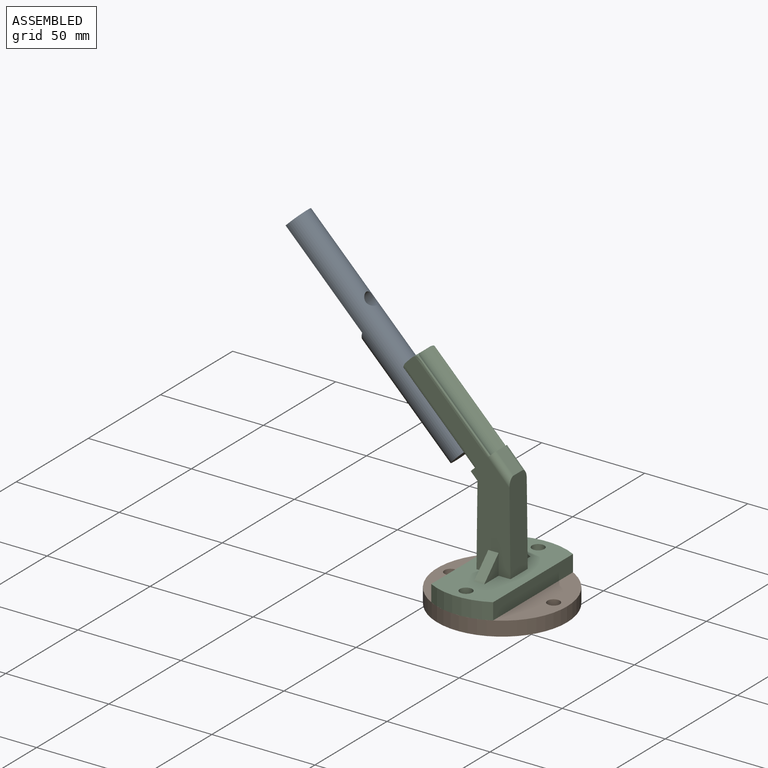
[diagram: assembled view]
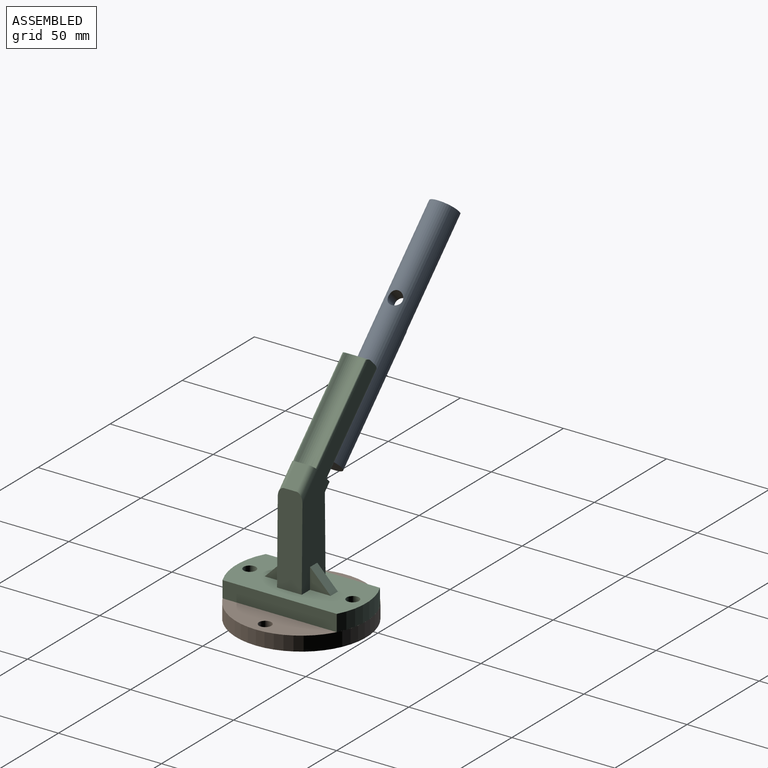
[diagram: assembled view, second angle]
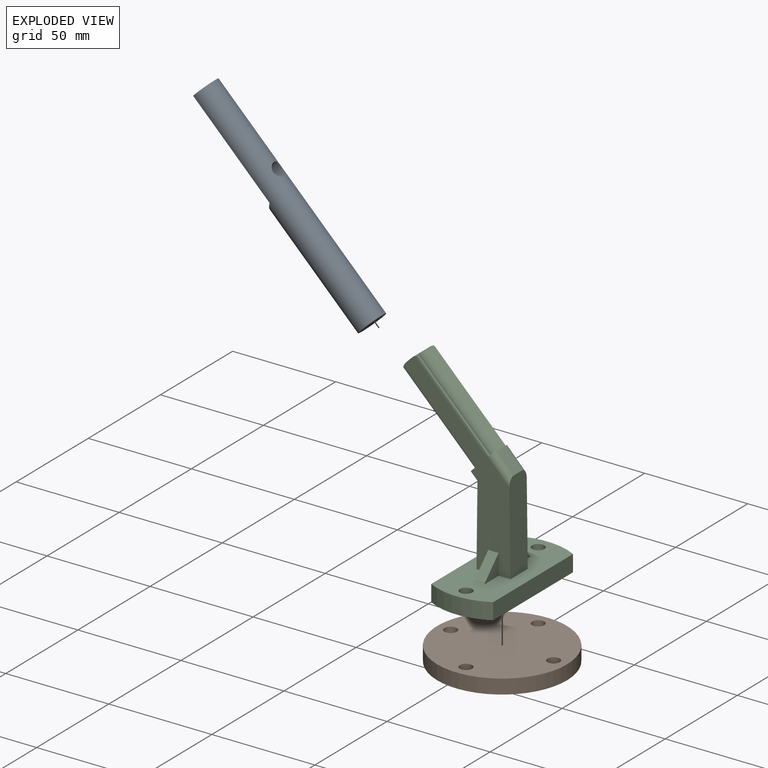
[diagram: exploded view]
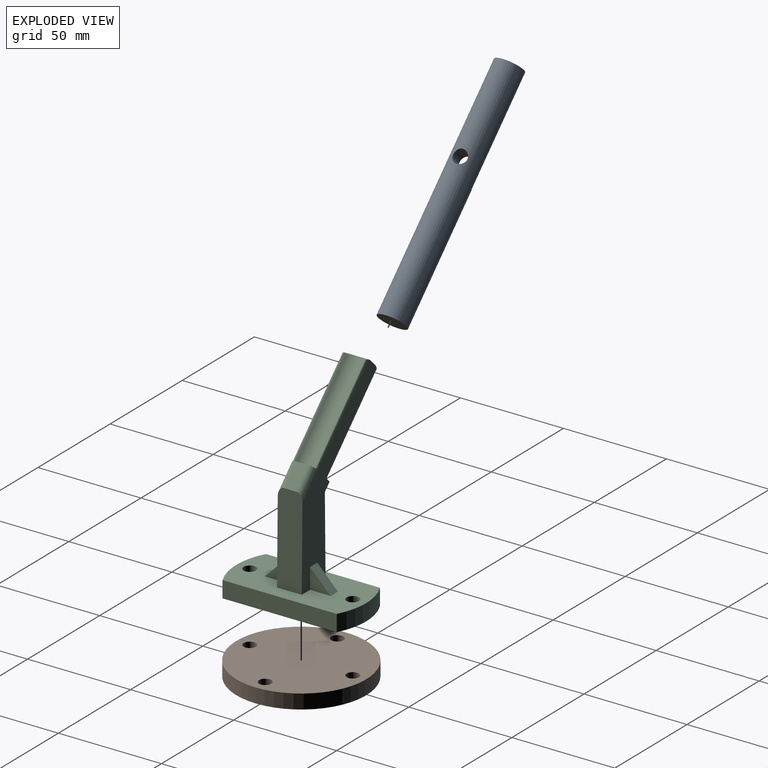
[diagram: exploded view, second angle]
ASSEMBLY  parts=3 mates=2
PART A: 6 faces, bbox 13.7x115x13.7 mm
  f0: cylinder r=6.85mm len=115mm, axis (0,1,0), area 3952.5mm2, adj f1,f2,f3,f4,f5
  f1: plane 13.7x8.7mm, normal (0,-1,0), area 98.7mm2, adj f0,f4
  f2: plane 13.7x13.7mm, normal (0,1,0), area 147.4mm2, adj f0
  f3: plane 13.19x5mm, normal (-0.45,-0.89,0), area 54.4mm2, adj f0,f4
  f4: plane 52.5x13.19mm, normal (-1,0,0), area 658.3mm2, adj f0,f1,f3,f5
  f5: cylinder r=3.3mm len=8.7mm, axis (-1,0,0), area 171.8mm2, adj f0,f4
PART B: 9 faces, bbox 63x63x12 mm
  f0: plane 63x63mm, normal (0,0,-1), area 2224.8mm2, adj f2,f3,f4,f5,f6,f7
  f1: plane 63x63mm, normal (0,0,1), area 3004.1mm2, adj f2,f3,f4,f5,f6
  f2: cylinder r=31.5mm len=63mm, axis (0,0,1), area 1385.4mm2, adj f0,f1
  f3: cylinder r=3mm len=7mm, axis (0,0,1), area 131.9mm2, adj f0,f1
  f4: cylinder r=3mm len=7mm, axis (0,0,1), area 131.9mm2, adj f0,f1
  f5: cylinder r=3mm len=7mm, axis (0,0,1), area 131.9mm2, adj f0,f1
  f6: cylinder r=3mm len=7mm, axis (0,0,1), area 131.9mm2, adj f0,f1
  f7: cylinder r=15.75mm len=31.5mm, axis (0,0,1), area 494.8mm2, adj f0,f8
  f8: plane 31.5x31.5mm, normal (0,0,-1), area 779.3mm2, adj f7
PART C: 33 faces, bbox 63x64.3x100.9 mm
  f0: plane 85.49x51.73mm, normal (0,-1,0), area 1076.7mm2, adj f2,f3,f5,f6,f7,f15,f16,f17
  f1: plane 85.49x51.73mm, normal (0,1,0), area 1076.7mm2, adj f2,f3,f5,f6,f7,f18,f19,f20
  f2: plane 12x3.37mm, normal (-0.72,0,-0.7), area 56.5mm2, adj f0,f1,f5,f26
  f3: cylinder r=5mm len=12mm, axis (0,-1,0), area 23.1mm2, adj f0,f1,f21,f23,f29,f30
  f4: plane 8.52x8.31mm, normal (0.72,0,0.7), area 71.4mm2, adj f6,f24,f27,f28
  f5: plane 38.9x12mm, normal (-1,0,0.01), area 466.8mm2, adj f0,f1,f2,f7
  f6: plane 45.51x13.33mm, normal (1,0,0.01), area 524.6mm2, adj f0,f1,f4,f7,f27,f28
  f7: plane 63x30mm, normal (0,0,1), area 1461.6mm2, adj f0,f1,f5,f6,f8,f9,f10,f11
  f8: plane 55.4x8mm, normal (1,0,0), area 443.2mm2, adj f7,f9,f13,f14
  f9: cylinder r=31.5mm len=30mm, axis (0,0,-1), area 250.1mm2, adj f7,f8,f10,f14
  f10: plane 55.4x8mm, normal (-1,0,0), area 443.2mm2, adj f7,f9,f13,f14
  f11: cylinder r=3mm len=8mm, axis (0,0,-1), area 150.8mm2, adj f7,f14
  f12: cylinder r=3mm len=8mm, axis (0,0,-1), area 150.8mm2, adj f7,f14
  f13: cylinder r=31.5mm len=30mm, axis (0,0,-1), area 250.1mm2, adj f7,f8,f10,f14
  f14: plane 63x30mm, normal (0,0,-1), area 1759.4mm2, adj f8,f9,f10,f11,f12,f13
  f15: plane 10x10mm, normal (-1,0,0), area 50mm2, adj f0,f7,f17
  f16: plane 10x10mm, normal (1,0,0), area 50mm2, adj f0,f7,f17
  f17: plane 10x10mm, normal (0,-0.71,0.71), area 70.7mm2, adj f0,f7,f15,f16
  f18: plane 10x10mm, normal (1,0,0), area 50mm2, adj f1,f7,f20
  f19: plane 10x10mm, normal (-1,0,0), area 50mm2, adj f1,f7,f20
  f20: plane 10x10mm, normal (0,0.71,0.71), area 70.7mm2, adj f1,f7,f18,f19
  f21: plane 12x2.92mm, normal (-0.71,0,0.71), area 49.5mm2, adj f0,f1,f3,f22
  f22: cylinder r=5mm len=12mm, axis (0,1,0), area 23.1mm2, adj f0,f1,f21,f25,f31,f32
  f23: cylinder r=7mm len=35.95mm, axis (-0.71,0,0.71), area 466.1mm2, adj f3,f24,f29,f30
  f24: plane 12.02x2.89mm, normal (-0.71,0,0.71), area 34.7mm2, adj f0,f1,f4,f23,f27,f28,f29,f30
  f25: cylinder r=7mm len=35.95mm, axis (-0.71,0,0.71), area 466.1mm2, adj f22,f26,f31,f32
  f26: plane 12x3.22mm, normal (-0.71,0,0.71), area 44.5mm2, adj f0,f1,f2,f25,f31,f32
  f27: cylinder r=3mm len=12.87mm, axis (-0.7,0,0.72), area 63.4mm2, adj f0,f4,f6,f24
  f28: cylinder r=3mm len=12.87mm, axis (0.7,0,-0.72), area 63.4mm2, adj f1,f4,f6,f24
  f29: bspline ~56.48x56.48mm, area 134.7mm2, adj f1,f3,f23,f24
  f30: bspline ~56.48x56.48mm, area 134.7mm2, adj f0,f3,f23,f24
  f31: bspline ~40.12x40.12mm, area 134.7mm2, adj f1,f22,f25,f26
  f32: bspline ~40.12x40.12mm, area 134.7mm2, adj f0,f22,f25,f26
PLACE A rot(axis=(-0.87,-0.39,-0.31),100.5deg) t=(-95.6,8.36,142.96)mm
PLACE B t=(-34.99,8.36,46.59)mm fixed
PLACE C t=(-34.99,8.36,46.59)mm
MATE cylindrical A.f0 <-> C.f25  axis (0.71,0,-0.71) through (-53.17,8.36,100.54)mm
MATE fastened C.f9 <-> B.f2  axis (0,0,-1) through (-34.99,8.36,46.59)mm
